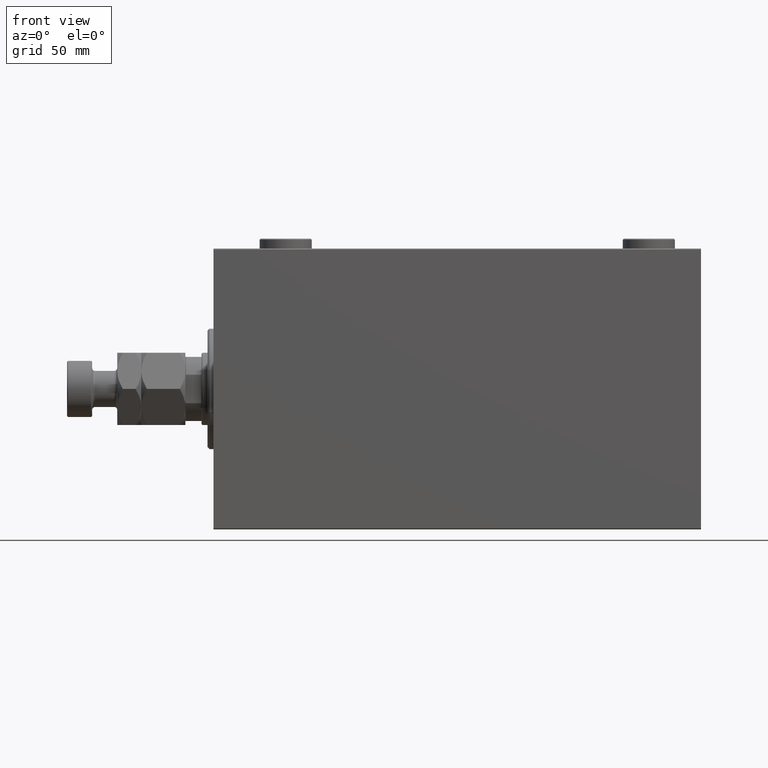
[diagram: clean part render]
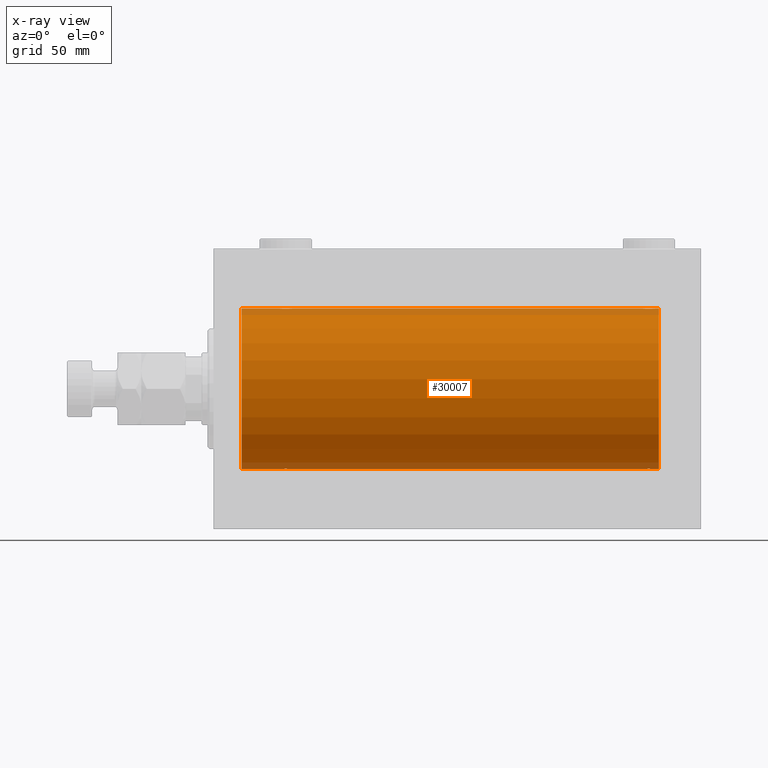
[diagram: x-ray — body ghosted, one internal face saturated and labeled with its STEP entity id]
A machine part, front view, then the same camera in x-ray: the body is ghosted and one INTERNAL B-rep face — a face not visible from any outside direction — is saturated and labeled: STEP entity #30007.
In plain terms, the highlighted cylindrical surface (partial cylindrical patch) has radius 40 mm, axis along (-1, -0, -0).
Its self-contained STEP definition (entity closure, byte-faithful):
#507 = B_SPLINE_CURVE_WITH_KNOTS ( 'NONE', 3,
 ( #43597, #11008, #19116, #40254, #36924, #33358, #11703, #7667, #29809, #22200, #40715, #753, #44293, #46927, #34070, #5033, #33597, #16239, #12185, #16475, #12654, #16008, #38338, #991, #30519, #27420, #12894, #8846, #26719, #11941, #45237, #41908 ),
 .UNSPECIFIED., .F., .F.,
 ( 4, 2, 2, 2, 2, 2, 2, 2, 2, 2, 2, 2, 2, 2, 2, 4 ),
 ( 0.009382660366305105304, 0.009968941372944142842, 0.01055522237958318038, 0.01114150338622221965, 0.01172778439286125719, 0.01231406539950029473, 0.01290034640613933400, 0.01348662741277837154, 0.01407290841941740908, 0.01465918942605644835, 0.01524547043269548416, 0.01583175143933452517, 0.01641803244597356271, 0.01700431345261260024, 0.01759059445925163778, 0.01876315647252971286 ),
 .UNSPECIFIED. ) ;
#661 = VECTOR ( 'NONE', #26907, 1000.000000000000000 ) ;
#753 = CARTESIAN_POINT ( 'NONE',  ( 34.49556917086533758, -2.602909538701760006, 39.91537030566259148 ) ) ;
#869 = VERTEX_POINT ( 'NONE', #22472 ) ;
#991 = CARTESIAN_POINT ( 'NONE',  ( 37.82690184632411246, -2.387636253591820079, 39.92882473497731866 ) ) ;
#1008 = CARTESIAN_POINT ( 'NONE',  ( 222.0000000000000000, 4.898587196589413026E-15, -40.00000000000000000 ) ) ;
#1277 = EDGE_CURVE ( 'NONE', #32249, #46049, #507, .T. ) ;
#1373 = CARTESIAN_POINT ( 'NONE',  ( 222.0000000000000000, 0.000000000000000000, 40.00000000000000000 ) ) ;
#1508 = B_SPLINE_CURVE_WITH_KNOTS ( 'NONE', 3,
 ( #19997, #8546, #12837, #41363, #23796, #37801, #27126, #1650, #5927, #19522, #27365, #41606, #30913, #5684, #34009, #15947, #41847, #23552, #42083, #20224, #34472, #45417, #44950, #5450, #9265, #12360, #38276, #23311, #34716, #5217, #2119, #16180 ),
 .UNSPECIFIED., .F., .F.,
 ( 4, 2, 2, 2, 2, 2, 2, 2, 2, 2, 2, 2, 2, 2, 2, 4 ),
 ( 0.009382660366305094896, 0.009968941372944130699, 0.01055522237958316650, 0.01114150338622220404, 0.01172778439286123985, 0.01231406539950027565, 0.01290034640613930972, 0.01348662741277834379, 0.01407290841941737959, 0.01465918942605641540, 0.01524547043269544946, 0.01583175143933448353, 0.01641803244597352107, 0.01700431345261255514, 0.01759059445925158921, 0.01876315647252969204 ),
 .UNSPECIFIED. ) ;
#1572 = EDGE_CURVE ( 'NONE', #14103, #11935, #22366, .T. ) ;
#1650 = CARTESIAN_POINT ( 'NONE',  ( 214.6149239908464494, -1.830402106103516280, 39.95843610133492518 ) ) ;
#1784 = CARTESIAN_POINT ( 'NONE',  ( 36.39522483453575319, -2.980272303779539556, -39.88883864243169342 ) ) ;
#1789 = CARTESIAN_POINT ( 'NONE',  ( 217.7786952341575102, -2.903766417398232491, -39.89448096967572610 ) ) ;
#2027 = CARTESIAN_POINT ( 'NONE',  ( 220.0000000000000568, -0.1957844162750487504, -40.00000000000000711 ) ) ;
#2119 = CARTESIAN_POINT ( 'NONE',  ( 220.0000000000001137, -0.3964922677423700081, 40.00000000000001421 ) ) ;
#2377 = LINE ( 'NONE', #13097, #661 ) ;
#2504 = CARTESIAN_POINT ( 'NONE',  ( 37.50443082913467663, -2.602909538701744463, -39.91537030566261279 ) ) ;
#3813 = DIRECTION ( 'NONE',  ( -1.000000000000000000, -0.000000000000000000, -0.000000000000000000 ) ) ;
#4690 = ORIENTED_EDGE ( 'NONE', *, *, #17412, .T. ) ;
#5033 = CARTESIAN_POINT ( 'NONE',  ( 35.60477516546423260, -2.980272303779553766, 39.88883864243167920 ) ) ;
#5217 = CARTESIAN_POINT ( 'NONE',  ( 219.9202617499165626, -0.7903958539027363672, 39.99381900068937767 ) ) ;
#5323 = CIRCLE ( 'NONE', #33444, 40.00000000000000000 ) ;
#5351 = CARTESIAN_POINT ( 'NONE',  ( 36.77869523415741781, -2.903766417398227162, -39.89448096967571900 ) ) ;
#5450 = CARTESIAN_POINT ( 'NONE',  ( 218.8269018463242617, -2.387636253591820079, 39.92882473497732576 ) ) ;
#5589 = CARTESIAN_POINT ( 'NONE',  ( 216.0351067414648583, -2.847401743820453301, -39.89859630624607689 ) ) ;
#5684 = CARTESIAN_POINT ( 'NONE',  ( 216.0306165810553125, -2.845855236045348402, 39.89870693240650468 ) ) ;
#5824 = CARTESIAN_POINT ( 'NONE',  ( 38.60433599912082769, -1.502129635933996621, -39.97212271185184562 ) ) ;
#5927 = CARTESIAN_POINT ( 'NONE',  ( 214.7390238300525596, -1.981471132463162643, 39.95113231465138171 ) ) ;
#6307 = CARTESIAN_POINT ( 'NONE',  ( 36.20041286019198168, -2.999840380514733340, -39.88735335562824957 ) ) ;
#6313 = CARTESIAN_POINT ( 'NONE',  ( 219.9810187711093192, -0.3904143323715928426, -39.99856256910221219 ) ) ;
#6830 = CARTESIAN_POINT ( 'NONE',  ( 222.0000000000000000, 0.000000000000000000, 0.000000000000000000 ) ) ;
#6889 = DIRECTION ( 'NONE',  ( -1.000000000000000000, -0.000000000000000000, -0.000000000000000000 ) ) ;
#7667 = CARTESIAN_POINT ( 'NONE',  ( 33.61492399084646365, -1.830402106103518722, 39.95843610133494650 ) ) ;
#7702 = ORIENTED_EDGE ( 'NONE', *, *, #46493, .T. ) ;
#8536 = ORIENTED_EDGE ( 'NONE', *, *, #27722, .F. ) ;
#8546 = CARTESIAN_POINT ( 'NONE',  ( 214.0000000000000568, -0.1957844162750525807, 40.00000000000000000 ) ) ;
#8846 = CARTESIAN_POINT ( 'NONE',  ( 38.60188728128492386, -1.506322235190783232, 39.97196309111974699 ) ) ;
#8933 = CARTESIAN_POINT ( 'NONE',  ( 219.2609761699474404, -1.981471132463162199, -39.95113231465138881 ) ) ;
#9158 = CARTESIAN_POINT ( 'NONE',  ( 32.99999999999999289, 8.398598542115384856E-15, -40.00000000000000000 ) ) ;
#9163 = CARTESIAN_POINT ( 'NONE',  ( 217.9693834189447443, -2.845855236045350178, -39.89870693240651889 ) ) ;
#9173 = CARTESIAN_POINT ( 'NONE',  ( 220.0000000000000284, 4.898587181765620889E-15, -40.00000000000000000 ) ) ;
#9214 = EDGE_CURVE ( 'NONE', #30389, #25065, #23274, .T. ) ;
#9265 = CARTESIAN_POINT ( 'NONE',  ( 218.9813627951423030, -2.261082456166709775, 39.93628274425758207 ) ) ;
#9279 = ORIENTED_EDGE ( 'NONE', *, *, #28981, .T. ) ;
#9457 = AXIS2_PLACEMENT_3D ( 'NONE', #31609, #34694, #13295 ) ;
#9637 = CARTESIAN_POINT ( 'NONE',  ( 38.26097616994741912, -1.981471132463159535, -39.95113231465138881 ) ) ;
#10493 = VERTEX_POINT ( 'NONE', #33302 ) ;
#10527 = CARTESIAN_POINT ( 'NONE',  ( 220.0000000000000284, 1.446721683758770418E-15, 40.00000000000000000 ) ) ;
#10587 = CARTESIAN_POINT ( 'NONE',  ( 13.99999999999998401, 4.898587196589413026E-15, -40.00000000000000000 ) ) ;
#10885 = CARTESIAN_POINT ( 'NONE',  ( 39.00000000000000000, 4.898587181754971267E-15, -40.00000000000000000 ) ) ;
#11008 = CARTESIAN_POINT ( 'NONE',  ( 32.99999999999997158, -0.1957844162750552452, 40.00000000000000000 ) ) ;
#11703 = CARTESIAN_POINT ( 'NONE',  ( 33.39566400087915810, -1.502129635934004614, 39.97212271185186694 ) ) ;
#11935 = VERTEX_POINT ( 'NONE', #10885 ) ;
#11941 = CARTESIAN_POINT ( 'NONE',  ( 38.92026174991647025, -0.7903958539027386987, 39.99381900068935636 ) ) ;
#12185 = CARTESIAN_POINT ( 'NONE',  ( 36.39109692509333627, -2.980812880639903906, 39.88879797994688658 ) ) ;
#12360 = CARTESIAN_POINT ( 'NONE',  ( 219.2582967032050192, -1.984537326394308909, 39.95097977400577349 ) ) ;
#12654 = CARTESIAN_POINT ( 'NONE',  ( 36.96489325853514174, -2.847401743820462183, 39.89859630624607689 ) ) ;
#12737 = CARTESIAN_POINT ( 'NONE',  ( 33.07973825008353685, -0.7903958539027335917, -39.99381900068937057 ) ) ;
#12837 = CARTESIAN_POINT ( 'NONE',  ( 214.0189812288908513, -0.3904143323715967839, 39.99856256910221219 ) ) ;
#12894 = CARTESIAN_POINT ( 'NONE',  ( 38.38251680911464803, -1.833695109615718355, 39.95828327492363741 ) ) ;
#13097 = CARTESIAN_POINT ( 'NONE',  ( 222.0000000000000000, 4.898587196589413026E-15, -40.00000000000000000 ) ) ;
#13217 = CARTESIAN_POINT ( 'NONE',  ( 38.90425173651352253, -0.7773146824710970293, -39.99291453282343412 ) ) ;
#13295 = DIRECTION ( 'NONE',  ( 0.000000000000000000, 0.000000000000000000, 1.000000000000000000 ) ) ;
#14103 = VERTEX_POINT ( 'NONE', #31861 ) ;
#14154 = CARTESIAN_POINT ( 'NONE',  ( 214.0000000000000284, -6.583213521957483488E-15, -40.00000000000000000 ) ) ;
#15947 = CARTESIAN_POINT ( 'NONE',  ( 216.6047751654642752, -2.980272303779546217, 39.88883864243170052 ) ) ;
#16008 = CARTESIAN_POINT ( 'NONE',  ( 37.32853644746295885, -2.696981015661930936, 39.90904630908465833 ) ) ;
#16087 = CARTESIAN_POINT ( 'NONE',  ( 35.22544321173659654, -2.904869018727211483, -39.89440043036668726 ) ) ;
#16180 = CARTESIAN_POINT ( 'NONE',  ( 220.0000000000000284, 1.446721683758770418E-15, 40.00000000000000000 ) ) ;
#16239 = CARTESIAN_POINT ( 'NONE',  ( 36.19560531073086906, -3.000157693440643758, 39.88732948994960026 ) ) ;
#16315 = CARTESIAN_POINT ( 'NONE',  ( 33.61748319088536618, -1.833695109615709917, -39.95828327492364451 ) ) ;
#16321 = CARTESIAN_POINT ( 'NONE',  ( 216.8043946892691451, -3.000157693440638429, -39.88732948994960026 ) ) ;
#16475 = CARTESIAN_POINT ( 'NONE',  ( 36.77455678826341057, -2.904869018727228358, 39.89440043036668015 ) ) ;
#16558 = CARTESIAN_POINT ( 'NONE',  ( 38.84665273013138886, -0.9668189122103337807, -39.98872185468385965 ) ) ;
#16564 = CARTESIAN_POINT ( 'NONE',  ( 215.4991153159596990, -2.604941918888313168, -39.91523680494982784 ) ) ;
#16715 = VERTEX_POINT ( 'NONE', #10527 ) ;
#16802 = CARTESIAN_POINT ( 'NONE',  ( 219.9042517365135723, -0.7773146824710978064, -39.99291453282344833 ) ) ;
#17033 = CARTESIAN_POINT ( 'NONE',  ( 38.38507600915352924, -1.830402106103509174, -39.95843610133493229 ) ) ;
#17039 = CARTESIAN_POINT ( 'NONE',  ( 219.6972134058088102, -1.327859336864138262, -39.97836169682017271 ) ) ;
#17275 = CARTESIAN_POINT ( 'NONE',  ( 219.8466527301313818, -0.9668189122103273414, -39.98872185468384544 ) ) ;
#17330 = DIRECTION ( 'NONE',  ( 0.000000000000000000, 0.000000000000000000, 1.000000000000000000 ) ) ;
#17412 = EDGE_CURVE ( 'NONE', #45762, #36693, #20138, .T. ) ;
#17948 = CARTESIAN_POINT ( 'NONE',  ( 32.99999999999999289, 8.398598542115384856E-15, -40.00000000000000000 ) ) ;
#18080 = CARTESIAN_POINT ( 'NONE',  ( 222.0000000000000000, 0.000000000000000000, 40.00000000000000000 ) ) ;
#19116 = CARTESIAN_POINT ( 'NONE',  ( 33.01898122889073051, -0.3904143323715976166, 39.99856256910221219 ) ) ;
#19414 = VECTOR ( 'NONE', #3813, 1000.000000000000000 ) ;
#19522 = CARTESIAN_POINT ( 'NONE',  ( 215.0153855218772492, -2.258217541132898631, 39.93644519243653690 ) ) ;
#19907 = CARTESIAN_POINT ( 'NONE',  ( 218.8304482282240429, -2.384933850258109445, -39.92898715513240404 ) ) ;
#19997 = CARTESIAN_POINT ( 'NONE',  ( 214.0000000000000284, -1.482387970046064334E-23, 40.00000000000000000 ) ) ;
#20138 = CIRCLE ( 'NONE', #9457, 40.00000000000000000 ) ;
#20224 = CARTESIAN_POINT ( 'NONE',  ( 217.7745567882635100, -2.904869018727220364, 39.89440043036669437 ) ) ;
#20610 = CARTESIAN_POINT ( 'NONE',  ( 37.83044822822401443, -2.384933850258097010, -39.92898715513240404 ) ) ;
#20842 = CARTESIAN_POINT ( 'NONE',  ( 35.80439468926913094, -3.000157693440628659, -39.88732948994960736 ) ) ;
#20897 = ORIENTED_EDGE ( 'NONE', *, *, #1277, .T. ) ;
#21308 = CARTESIAN_POINT ( 'NONE',  ( 214.0000000000000568, -0.3964922677423779462, -40.00000000000000000 ) ) ;
#21809 = CARTESIAN_POINT ( 'NONE',  ( 222.0000000000000000, 0.000000000000000000, 0.000000000000000000 ) ) ;
#21877 = CARTESIAN_POINT ( 'NONE',  ( 222.0000000000000000, 0.000000000000000000, 40.00000000000000000 ) ) ;
#22200 = CARTESIAN_POINT ( 'NONE',  ( 34.01538552187719233, -2.258217541132905293, 39.93644519243653690 ) ) ;
#22366 = LINE ( 'NONE', #32610, #19414 ) ;
#22472 = CARTESIAN_POINT ( 'NONE',  ( 214.0000000000000284, -1.482387970046064334E-23, 40.00000000000000000 ) ) ;
#23274 = LINE ( 'NONE', #37767, #30235 ) ;
#23311 = CARTESIAN_POINT ( 'NONE',  ( 219.6018872812850020, -1.506322235190787895, 39.97196309111976831 ) ) ;
#23456 = CARTESIAN_POINT ( 'NONE',  ( 34.67146355253703405, -2.696981015661913172, -39.90904630908467254 ) ) ;
#23552 = CARTESIAN_POINT ( 'NONE',  ( 217.1956053107309970, -3.000157693440639761, 39.88732948994960736 ) ) ;
#23695 = CARTESIAN_POINT ( 'NONE',  ( 33.74170329679496660, -1.984537326394296253, -39.95097977400577349 ) ) ;
#23700 = CARTESIAN_POINT ( 'NONE',  ( 216.2254432117366036, -2.904869018727219476, -39.89440043036668015 ) ) ;
#23796 = CARTESIAN_POINT ( 'NONE',  ( 214.1533472698686182, -0.9668189122103342248, 39.98872185468384544 ) ) ;
#23815 = DIRECTION ( 'NONE',  ( -1.000000000000000000, 0.000000000000000000, 0.000000000000000000 ) ) ;
#24052 = DIRECTION ( 'NONE',  ( 0.000000000000000000, 0.000000000000000000, 1.000000000000000000 ) ) ;
#24416 = CARTESIAN_POINT ( 'NONE',  ( 37.33224268865864559, -2.695129988695730727, -39.90917164320281074 ) ) ;
#24650 = CARTESIAN_POINT ( 'NONE',  ( 215.1730981536759373, -2.387636253591819635, -39.92882473497731866 ) ) ;
#25065 = VERTEX_POINT ( 'NONE', #9173 ) ;
#26397 = ORIENTED_EDGE ( 'NONE', *, *, #9214, .T. ) ;
#26719 = CARTESIAN_POINT ( 'NONE',  ( 38.69537007708435539, -1.331594428131644747, 39.97823692017209396 ) ) ;
#26907 = DIRECTION ( 'NONE',  ( -1.000000000000000000, -0.000000000000000000, -0.000000000000000000 ) ) ;
#27032 = CARTESIAN_POINT ( 'NONE',  ( 39.00000000000000000, 4.898587181754971267E-15, -40.00000000000000000 ) ) ;
#27052 = B_SPLINE_CURVE_WITH_KNOTS ( 'NONE', 3,
 ( #27032, #31532, #42219, #13217, #16558, #31061, #5824, #17033, #9637, #34866, #20610, #2504, #24416, #38901, #5351, #1784, #6307, #20842, #35329, #16087, #41506, #23456, #37939, #34381, #45553, #23695, #16315, #30820, #45316, #12737, #41745, #9158 ),
 .UNSPECIFIED., .F., .F.,
 ( 4, 2, 2, 2, 2, 2, 2, 2, 2, 2, 2, 2, 2, 2, 2, 4 ),
 ( 0.009382660366305113978, 0.009968941372944149781, 0.01055522237958318559, 0.01114150338622222139, 0.01172778439286125719, 0.01231406539950029300, 0.01290034640613932707, 0.01348662741277836287, 0.01407290841941739867, 0.01465918942605643448, 0.01524547043269547028, 0.01583175143933450435, 0.01641803244597354189, 0.01700431345261257943, 0.01759059445925161697, 0.01876315647252968857 ),
 .UNSPECIFIED. ) ;
#27126 = CARTESIAN_POINT ( 'NONE',  ( 214.3956640008792647, -1.502129635934003948, 39.97212271185186694 ) ) ;
#27272 = CARTESIAN_POINT ( 'NONE',  ( 218.3322426886586243, -2.695129988695745382, -39.90917164320280364 ) ) ;
#27365 = CARTESIAN_POINT ( 'NONE',  ( 215.1695517717760140, -2.384933850258109445, 39.92898715513240404 ) ) ;
#27420 = CARTESIAN_POINT ( 'NONE',  ( 38.25829670320502629, -1.984537326394305801, 39.95097977400578060 ) ) ;
#27722 = EDGE_CURVE ( 'NONE', #32249, #36693, #34203, .T. ) ;
#27743 = CARTESIAN_POINT ( 'NONE',  ( 218.5044308291346624, -2.602909538701756453, -39.91537030566258437 ) ) ;
#28039 = FACE_OUTER_BOUND ( 'NONE', #34719, .T. ) ;
#28694 = VECTOR ( 'NONE', #44905, 1000.000000000000000 ) ;
#28803 = DIRECTION ( 'NONE',  ( -1.000000000000000000, -0.000000000000000000, -0.000000000000000000 ) ) ;
#28981 = EDGE_CURVE ( 'NONE', #869, #16715, #1508, .T. ) ;
#29135 = CARTESIAN_POINT ( 'NONE',  ( 215.0186372048577539, -2.261082456166710219, -39.93628274425758207 ) ) ;
#29809 = CARTESIAN_POINT ( 'NONE',  ( 33.73902383005257377, -1.981471132463168416, 39.95113231465138881 ) ) ;
#29943 = DIRECTION ( 'NONE',  ( -1.000000000000000000, -0.000000000000000000, -0.000000000000000000 ) ) ;
#30007 = ADVANCED_FACE ( 'NONE', ( #28039 ), #42762, .F. ) ;
#30235 = VECTOR ( 'NONE', #29943, 1000.000000000000000 ) ;
#30389 = VERTEX_POINT ( 'NONE', #1008 ) ;
#30519 = CARTESIAN_POINT ( 'NONE',  ( 37.98136279514229585, -2.261082456166707111, 39.93628274425758207 ) ) ;
#30575 = ORIENTED_EDGE ( 'NONE', *, *, #1572, .T. ) ;
#30720 = ORIENTED_EDGE ( 'NONE', *, *, #33291, .T. ) ;
#30820 = CARTESIAN_POINT ( 'NONE',  ( 33.39811271871507614, -1.506322235190776127, -39.97196309111974699 ) ) ;
#30913 = CARTESIAN_POINT ( 'NONE',  ( 215.6677573113414610, -2.695129988695745826, 39.90917164320281074 ) ) ;
#30972 = ORIENTED_EDGE ( 'NONE', *, *, #36768, .F. ) ;
#31061 = CARTESIAN_POINT ( 'NONE',  ( 38.69721340580881019, -1.327859336864143147, -39.97836169682018692 ) ) ;
#31532 = CARTESIAN_POINT ( 'NONE',  ( 39.00000000000000000, -0.1957844162750501937, -39.99999999999999289 ) ) ;
#31537 = CARTESIAN_POINT ( 'NONE',  ( 217.3952248345358100, -2.980272303779546217, -39.88883864243168631 ) ) ;
#31609 = CARTESIAN_POINT ( 'NONE',  ( 13.99999999999998401, 0.000000000000000000, 0.000000000000000000 ) ) ;
#31772 = CARTESIAN_POINT ( 'NONE',  ( 219.6043359991208774, -1.502129635934009055, -39.97212271185185983 ) ) ;
#31861 = CARTESIAN_POINT ( 'NONE',  ( 214.0000000000000284, -6.583213521957483488E-15, -40.00000000000000000 ) ) ;
#31968 = ORIENTED_EDGE ( 'NONE', *, *, #43429, .F. ) ;
#32232 = CARTESIAN_POINT ( 'NONE',  ( 214.0797382500835511, -0.7903958539027423624, -39.99381900068937057 ) ) ;
#32249 = VERTEX_POINT ( 'NONE', #45124 ) ;
#32465 = CARTESIAN_POINT ( 'NONE',  ( 214.3046299229156659, -1.331594428131645191, -39.97823692017208685 ) ) ;
#32610 = CARTESIAN_POINT ( 'NONE',  ( 222.0000000000000000, 4.898587196589413026E-15, -40.00000000000000000 ) ) ;
#33047 = ORIENTED_EDGE ( 'NONE', *, *, #34446, .F. ) ;
#33291 = EDGE_CURVE ( 'NONE', #35356, #45762, #2377, .T. ) ;
#33302 = CARTESIAN_POINT ( 'NONE',  ( 222.0000000000000000, 0.000000000000000000, 40.00000000000000000 ) ) ;
#33345 = ORIENTED_EDGE ( 'NONE', *, *, #43847, .T. ) ;
#33358 = CARTESIAN_POINT ( 'NONE',  ( 33.30278659419118270, -1.327859336864150253, 39.97836169682017982 ) ) ;
#33444 = AXIS2_PLACEMENT_3D ( 'NONE', #6830, #23815, #24052 ) ;
#33597 = CARTESIAN_POINT ( 'NONE',  ( 35.79958713980802543, -2.999840380514749327, 39.88735335562824247 ) ) ;
#34009 = CARTESIAN_POINT ( 'NONE',  ( 216.2213047658425182, -2.903766417398230271, 39.89448096967571189 ) ) ;
#34070 = CARTESIAN_POINT ( 'NONE',  ( 35.22130476584258219, -2.903766417398241373, 39.89448096967571189 ) ) ;
#34203 = LINE ( 'NONE', #1373, #28694 ) ;
#34381 = CARTESIAN_POINT ( 'NONE',  ( 34.17309815367587333, -2.387636253591803648, -39.92882473497732576 ) ) ;
#34446 = EDGE_CURVE ( 'NONE', #869, #46049, #39931, .T. ) ;
#34472 = CARTESIAN_POINT ( 'NONE',  ( 217.9648932585352270, -2.847401743820454190, 39.89859630624609821 ) ) ;
#34619 = CARTESIAN_POINT ( 'NONE',  ( 215.6714635525370625, -2.696981015661922498, -39.90904630908467965 ) ) ;
#34694 = DIRECTION ( 'NONE',  ( -1.000000000000000000, 0.000000000000000000, 0.000000000000000000 ) ) ;
#34716 = CARTESIAN_POINT ( 'NONE',  ( 219.6953700770844478, -1.331594428131642527, 39.97823692017210107 ) ) ;
#34719 = EDGE_LOOP ( 'NONE', ( #30972, #26397, #7702, #30575, #33345, #30720, #4690, #8536, #20897, #33047, #9279, #31968 ) ) ;
#34866 = CARTESIAN_POINT ( 'NONE',  ( 37.98461447812281477, -2.258217541132894191, -39.93644519243654400 ) ) ;
#35329 = CARTESIAN_POINT ( 'NONE',  ( 35.60890307490667794, -2.980812880639888363, -39.88879797994690080 ) ) ;
#35356 = VERTEX_POINT ( 'NONE', #17948 ) ;
#36307 = DIRECTION ( 'NONE',  ( -1.000000000000000000, -0.000000000000000000, -0.000000000000000000 ) ) ;
#36693 = VERTEX_POINT ( 'NONE', #43784 ) ;
#36768 = EDGE_CURVE ( 'NONE', #30389, #10493, #5323, .T. ) ;
#36924 = CARTESIAN_POINT ( 'NONE',  ( 33.15334726986859692, -0.9668189122103387767, 39.98872185468385254 ) ) ;
#37767 = CARTESIAN_POINT ( 'NONE',  ( 222.0000000000000000, 4.898587196589413026E-15, -40.00000000000000000 ) ) ;
#37801 = CARTESIAN_POINT ( 'NONE',  ( 214.3027865941912182, -1.327859336864145590, 39.97836169682017982 ) ) ;
#37939 = CARTESIAN_POINT ( 'NONE',  ( 34.49911531595964220, -2.604941918888299401, -39.91523680494982784 ) ) ;
#38276 = CARTESIAN_POINT ( 'NONE',  ( 219.3825168091146907, -1.833695109615722352, 39.95828327492363030 ) ) ;
#38338 = CARTESIAN_POINT ( 'NONE',  ( 37.50088468404035069, -2.604941918888315833, 39.91523680494983495 ) ) ;
#38901 = CARTESIAN_POINT ( 'NONE',  ( 36.96938341894464486, -2.845855236045336412, -39.89870693240652599 ) ) ;
#38906 = CARTESIAN_POINT ( 'NONE',  ( 220.0000000000000284, 4.898587181765620889E-15, -40.00000000000000000 ) ) ;
#39132 = CARTESIAN_POINT ( 'NONE',  ( 214.7417032967950377, -1.984537326394311130, -39.95097977400578770 ) ) ;
#39320 = B_SPLINE_CURVE_WITH_KNOTS ( 'NONE', 3,
 ( #38906, #2027, #6313, #16802, #17275, #17039, #31772, #46267, #8933, #45796, #19907, #27743, #27272, #9163, #1789, #31537, #46031, #16321, #42471, #23700, #5589, #34619, #16564, #24650, #29135, #39132, #43169, #43621, #32465, #32232, #21308, #14154 ),
 .UNSPECIFIED., .F., .F.,
 ( 4, 2, 2, 2, 2, 2, 2, 2, 2, 2, 2, 2, 2, 2, 2, 4 ),
 ( 0.009382660366305098365, 0.009968941372944134169, 0.01055522237958316824, 0.01114150338622220404, 0.01172778439286123811, 0.01231406539950027218, 0.01290034640613930625, 0.01348662741277834205, 0.01407290841941737612, 0.01465918942605641019, 0.01524547043269544599, 0.01583175143933448006, 0.01641803244597351413, 0.01700431345261255167, 0.01759059445925158921, 0.01876315647252968857 ),
 .UNSPECIFIED. ) ;
#39931 = LINE ( 'NONE', #21877, #43278 ) ;
#40254 = CARTESIAN_POINT ( 'NONE',  ( 33.09574826348647036, -0.7773146824711036906, 39.99291453282343412 ) ) ;
#40715 = CARTESIAN_POINT ( 'NONE',  ( 34.16955177177597847, -2.384933850258112553, 39.92898715513240404 ) ) ;
#40838 = AXIS2_PLACEMENT_3D ( 'NONE', #21809, #36307, #17330 ) ;
#41145 = VECTOR ( 'NONE', #6889, 1000.000000000000000 ) ;
#41363 = CARTESIAN_POINT ( 'NONE',  ( 214.0957482634864562, -0.7773146824711021363, 39.99291453282343412 ) ) ;
#41506 = CARTESIAN_POINT ( 'NONE',  ( 35.03510674146485115, -2.847401743820447084, -39.89859630624608400 ) ) ;
#41606 = CARTESIAN_POINT ( 'NONE',  ( 215.4955691708653092, -2.602909538701757342, 39.91537030566259858 ) ) ;
#41745 = CARTESIAN_POINT ( 'NONE',  ( 33.00000000000000000, -0.3964922677423601272, -40.00000000000001421 ) ) ;
#41847 = CARTESIAN_POINT ( 'NONE',  ( 216.7995871398080396, -2.999840380514742666, 39.88735335562825668 ) ) ;
#41908 = CARTESIAN_POINT ( 'NONE',  ( 39.00000000000000000, 1.037715139942869821E-15, 40.00000000000000000 ) ) ;
#42083 = CARTESIAN_POINT ( 'NONE',  ( 217.3910969250934215, -2.980812880639897688, 39.88879797994690080 ) ) ;
#42219 = CARTESIAN_POINT ( 'NONE',  ( 38.98101877110926239, -0.3904143323715922875, -39.99856256910221219 ) ) ;
#42471 = CARTESIAN_POINT ( 'NONE',  ( 216.6089030749066922, -2.980812880639896800, -39.88879797994687237 ) ) ;
#42762 = CYLINDRICAL_SURFACE ( 'NONE', #40838, 40.00000000000000000 ) ;
#43169 = CARTESIAN_POINT ( 'NONE',  ( 214.6174831908853946, -1.833695109615724794, -39.95828327492363741 ) ) ;
#43278 = VECTOR ( 'NONE', #28803, 1000.000000000000000 ) ;
#43282 = LINE ( 'NONE', #18080, #41145 ) ;
#43429 = EDGE_CURVE ( 'NONE', #10493, #16715, #43282, .T. ) ;
#43597 = CARTESIAN_POINT ( 'NONE',  ( 32.99999999999999289, -1.483452932268112700E-23, 40.00000000000000000 ) ) ;
#43621 = CARTESIAN_POINT ( 'NONE',  ( 214.3981127187150548, -1.506322235190790115, -39.97196309111975410 ) ) ;
#43784 = CARTESIAN_POINT ( 'NONE',  ( 13.99999999999998401, 0.000000000000000000, 40.00000000000000000 ) ) ;
#43847 = EDGE_CURVE ( 'NONE', #11935, #35356, #27052, .T. ) ;
#44293 = CARTESIAN_POINT ( 'NONE',  ( 34.66775731134134730, -2.695129988695744494, 39.90917164320281074 ) ) ;
#44905 = DIRECTION ( 'NONE',  ( -1.000000000000000000, -0.000000000000000000, -0.000000000000000000 ) ) ;
#44950 = CARTESIAN_POINT ( 'NONE',  ( 218.5008846840404146, -2.604941918888313612, 39.91523680494984916 ) ) ;
#45124 = CARTESIAN_POINT ( 'NONE',  ( 32.99999999999999289, -1.483452932268112700E-23, 40.00000000000000000 ) ) ;
#45237 = CARTESIAN_POINT ( 'NONE',  ( 39.00000000000000711, -0.3964922677423692865, 40.00000000000000711 ) ) ;
#45316 = CARTESIAN_POINT ( 'NONE',  ( 33.30462992291564461, -1.331594428131637420, -39.97823692017210817 ) ) ;
#45417 = CARTESIAN_POINT ( 'NONE',  ( 218.3285364474630796, -2.696981015661923387, 39.90904630908469386 ) ) ;
#45553 = CARTESIAN_POINT ( 'NONE',  ( 34.01863720485771125, -2.261082456166694676, -39.93628274425758917 ) ) ;
#45748 = CARTESIAN_POINT ( 'NONE',  ( 39.00000000000000000, 1.037715139942869821E-15, 40.00000000000000000 ) ) ;
#45762 = VERTEX_POINT ( 'NONE', #10587 ) ;
#45796 = CARTESIAN_POINT ( 'NONE',  ( 218.9846144781228929, -2.258217541132897299, -39.93644519243653690 ) ) ;
#46031 = CARTESIAN_POINT ( 'NONE',  ( 217.2004128601920456, -2.999840380514741778, -39.88735335562823536 ) ) ;
#46049 = VERTEX_POINT ( 'NONE', #45748 ) ;
#46267 = CARTESIAN_POINT ( 'NONE',  ( 219.3850760091535790, -1.830402106103519833, -39.95843610133493229 ) ) ;
#46493 = EDGE_CURVE ( 'NONE', #25065, #14103, #39320, .T. ) ;
#46927 = CARTESIAN_POINT ( 'NONE',  ( 35.03061658105534804, -2.845855236045349734, 39.89870693240651889 ) ) ;